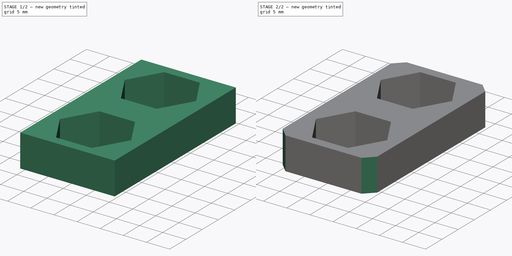
[diagram: build sequence overview — one tinted view per stage of 2, left to right]
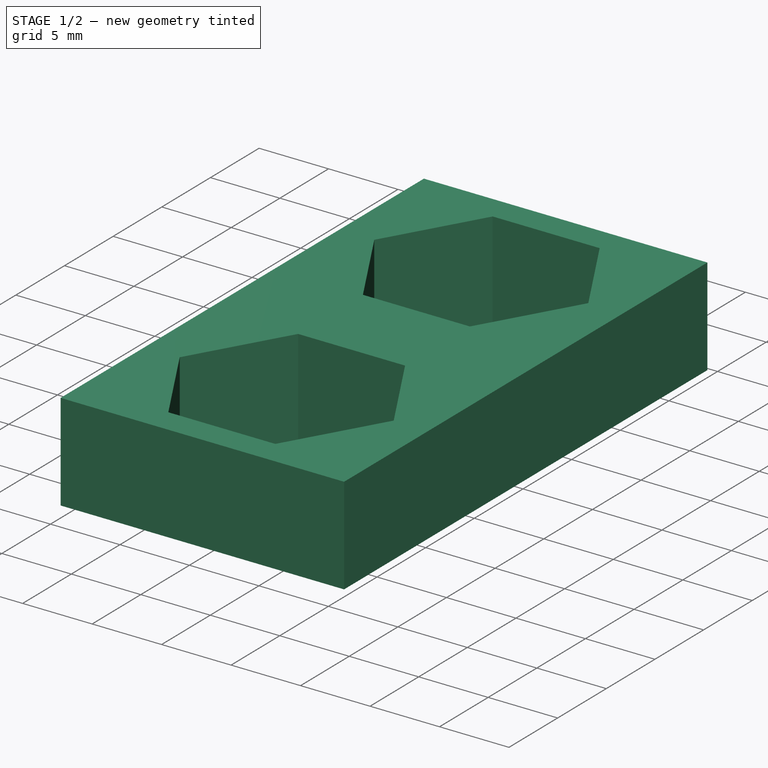
[diagram: stage 1 of 2 — iso view after this stage's code; geometry added in this stage tinted green]
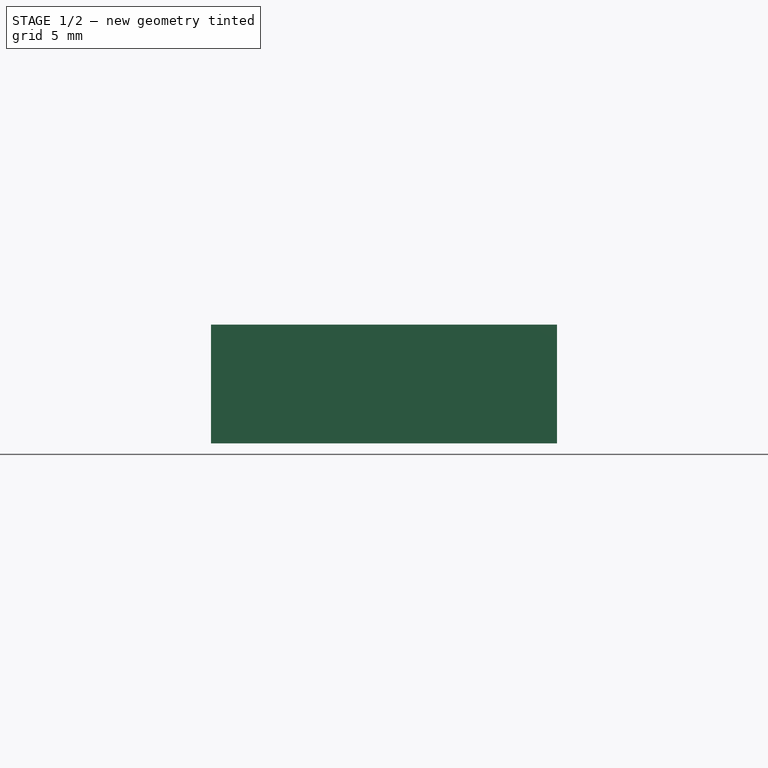
[diagram: stage 1 of 2 — front view after this stage's code; geometry added in this stage tinted green]
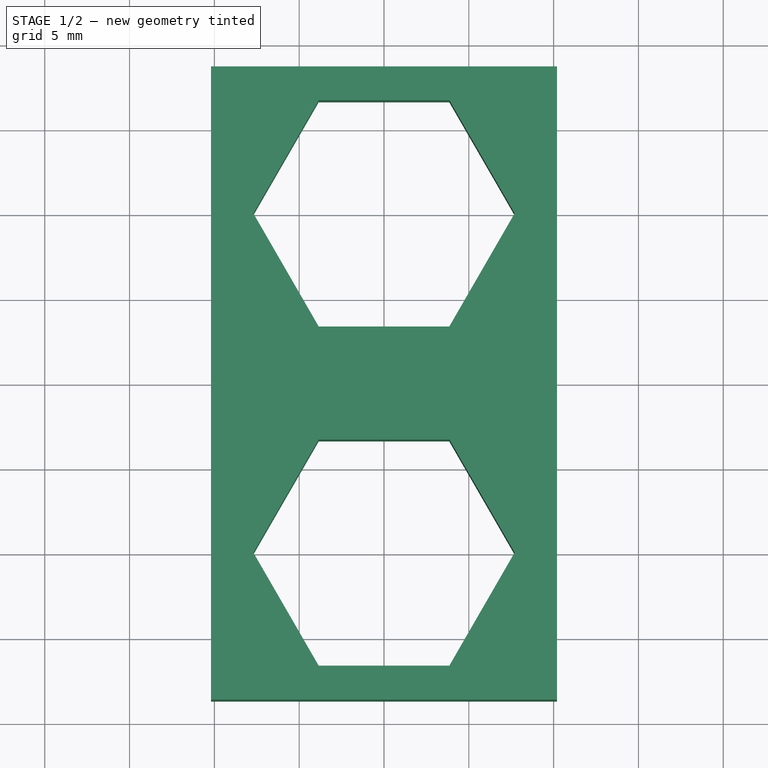
[diagram: stage 1 of 2 — top view after this stage's code; geometry added in this stage tinted green]
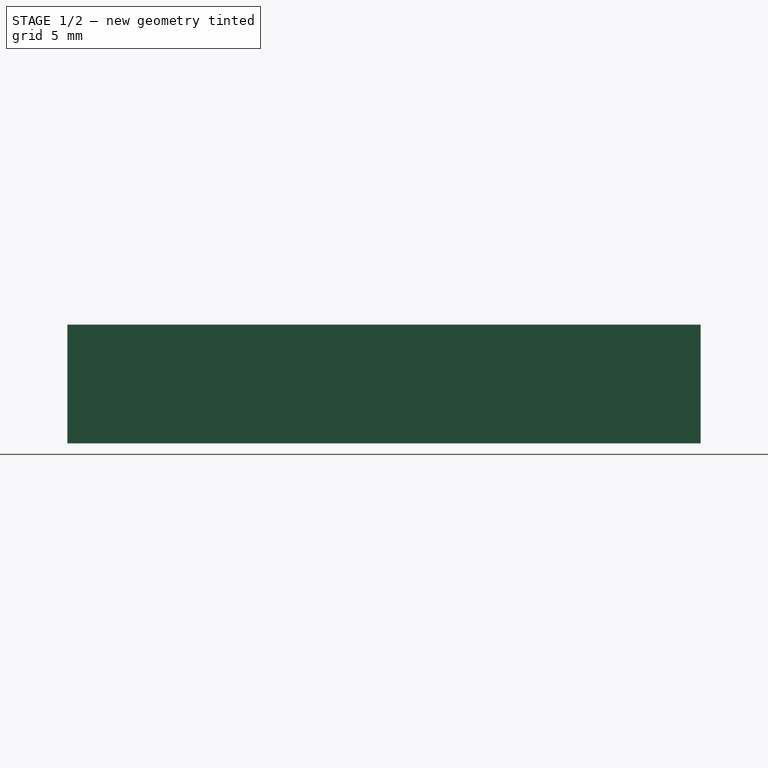
[diagram: stage 1 of 2 — right view after this stage's code; geometry added in this stage tinted green]
FCSTD DOCUMENT  (FreeCAD 0.15R4671 (Git))
Label: Y_axis_corner_nut_locker
License: CreativeCommons Attribution-ShareAlike
LicenseURL: http://creativecommons.org/licenses/by-sa/4.0/
objects: Sketcher::SketchObject×1, PartDesign::Pad×1, PartDesign::Chamfer×1
note: 4 computed .brp shape members not serialized (recipe doc carries the construction recipe); baked Part::Feature solids carry a one-line shape summary decoded from their .brp

FEATURE [Sketcher::SketchObject] Sketch
  sketch-geometry (18):
    g0: LineSegment StartX=3.85 StartY=16.6684 StartZ=0 EndX=-3.85 EndY=16.6684 EndZ=0
    g1: LineSegment StartX=-3.85 StartY=16.6684 StartZ=0 EndX=-7.7 EndY=10 EndZ=0
    g2: LineSegment StartX=-7.7 StartY=10 StartZ=0 EndX=-3.85 EndY=3.3316 EndZ=0
    g3: LineSegment StartX=-3.85 StartY=3.3316 StartZ=0 EndX=3.85 EndY=3.3316 EndZ=0
    g4: LineSegment StartX=3.85 StartY=3.3316 StartZ=0 EndX=7.7 EndY=10 EndZ=0
    g5: LineSegment StartX=7.7 StartY=10 StartZ=0 EndX=3.85 EndY=16.6684 EndZ=0
    g6: Circle [constr] CenterX=0 CenterY=10 CenterZ=0 NormalX=0 NormalY=0 NormalZ=1 Radius=7.7
    g7: LineSegment StartX=3.85 StartY=-3.3316 StartZ=0 EndX=-3.85 EndY=-3.3316 EndZ=0
    g8: LineSegment StartX=-3.85 StartY=-3.3316 StartZ=0 EndX=-7.7 EndY=-10 EndZ=0
    g9: LineSegment StartX=-7.7 StartY=-10 StartZ=0 EndX=-3.85 EndY=-16.6684 EndZ=0
    g10: LineSegment StartX=-3.85 StartY=-16.6684 StartZ=0 EndX=3.85 EndY=-16.6684 EndZ=0
    g11: LineSegment StartX=3.85 StartY=-16.6684 StartZ=0 EndX=7.7 EndY=-10 EndZ=0
    g12: LineSegment StartX=7.7 StartY=-10 StartZ=0 EndX=3.85 EndY=-3.3316 EndZ=0
    g13: Circle [constr] CenterX=0 CenterY=-10 CenterZ=0 NormalX=0 NormalY=0 NormalZ=1 Radius=7.7
    g14: LineSegment StartX=-10.2 StartY=18.6684 StartZ=0 EndX=10.2 EndY=18.6684 EndZ=0
    g15: LineSegment StartX=10.2 StartY=18.6684 StartZ=0 EndX=10.2 EndY=-18.6684 EndZ=0
    g16: LineSegment StartX=10.2 StartY=-18.6684 StartZ=0 EndX=-10.2 EndY=-18.6684 EndZ=0
    g17: LineSegment StartX=-10.2 StartY=-18.6684 StartZ=0 EndX=-10.2 EndY=18.6684 EndZ=0
  constraints (46):
    c: Coincident(g0,g1)
    c: Coincident(g1,g2)
    c: Coincident(g2,g3)
    c: Coincident(g3,g4)
    c: Coincident(g4,g5)
    c: Coincident(g5,g0)
    c: Equal(g0, g1-g5) x5
    c: PointOnObject(g0,g6)
    c: PointOnObject(g1,g6)
    c: PointOnObject(g2,g6)
    c: PointOnObject(g3,g6)
    c: PointOnObject(g4,g6)
    c: PointOnObject(g5,g6)
    c: PointOnObject(g3,g-2)
    c: Coincident(g7,g8)
    c: Coincident(g8,g9)
    c: Coincident(g9,g10)
    c: Coincident(g10,g11)
    c: Coincident(g11,g12)
    c: Coincident(g12,g7)
    c: Equal(g7, g8-g12) x5
    c: PointOnObject(g7,g13)
    c: PointOnObject(g8,g13)
    c: PointOnObject(g9,g13)
    c: PointOnObject(g10,g13)
    c: PointOnObject(g11,g13)
    c: PointOnObject(g12,g13)
    c: PointOnObject(g10,g-2)
    c: Symmetric(g13,g6,g-1)
    c: PointOnObject(g6,g-2)
    c: Equal(g13,g6)
    c: Horizontal(g3)
    c: Horizontal(g7)
    c: DistanceX(g1,g6) = 7.7
    c: Coincident(g14,g15)
    c: Coincident(g15,g16)
    c: Coincident(g16,g17)
    c: Coincident(g17,g14)
    c: Horizontal(g14)
    c: Horizontal(g16)
    c: Vertical(g15)
    c: Vertical(g17)
    c: Symmetric(g14,g15,g-1)
    c: DistanceX(g1,g14) = -2.5
    c: DistanceY(g-1,g6) = 10
    c: DistanceY(g0,g14) = 2
FEATURE [PartDesign::Pad] Pad
  Length = 7
  Length2 = 100
  Sketch = -> Sketch
  Type = 0
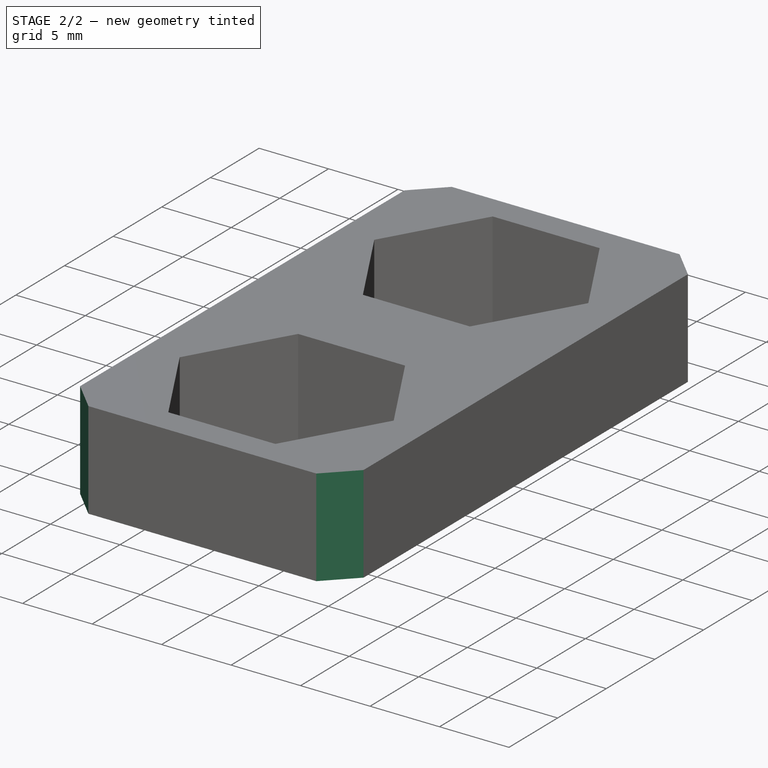
[diagram: stage 2 of 2 — iso view after this stage's code; geometry added in this stage tinted green]
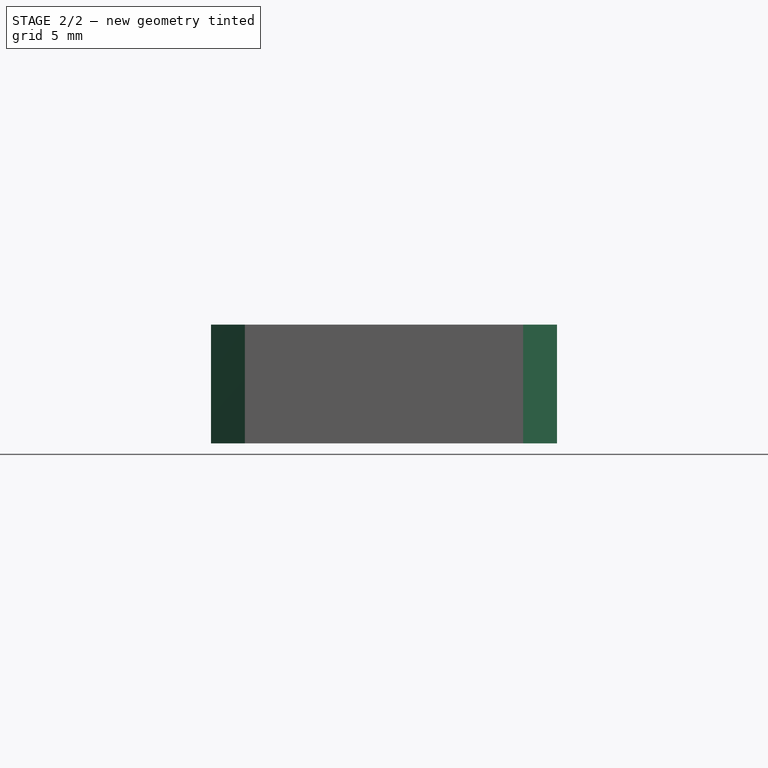
[diagram: stage 2 of 2 — front view after this stage's code; geometry added in this stage tinted green]
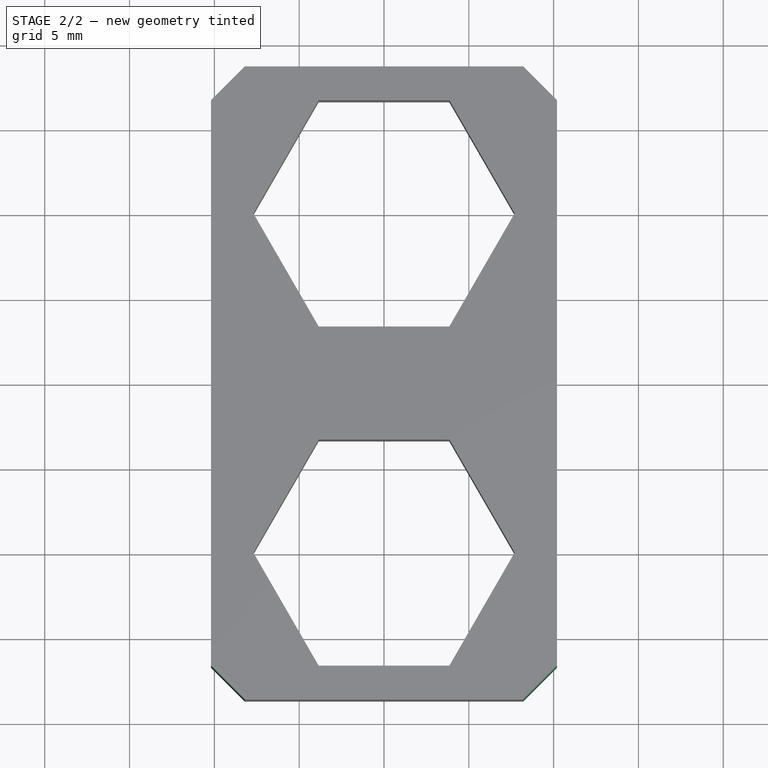
[diagram: stage 2 of 2 — top view after this stage's code; geometry added in this stage tinted green]
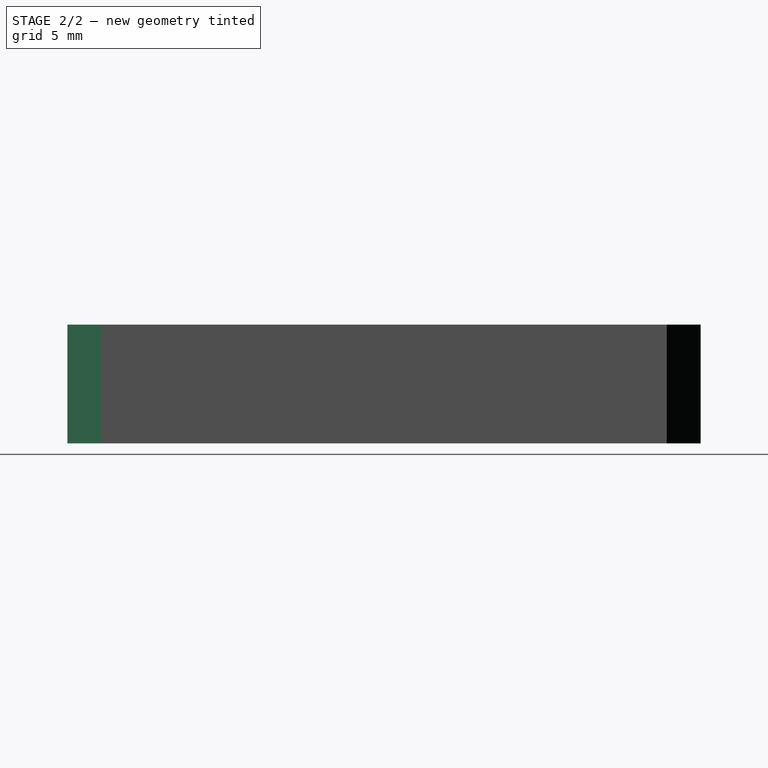
[diagram: stage 2 of 2 — right view after this stage's code; geometry added in this stage tinted green]
FEATURE [PartDesign::Chamfer] Chamfer
  Base = -> Pad [Edge2,Edge1,Edge5,Edge8]
  Size = 2
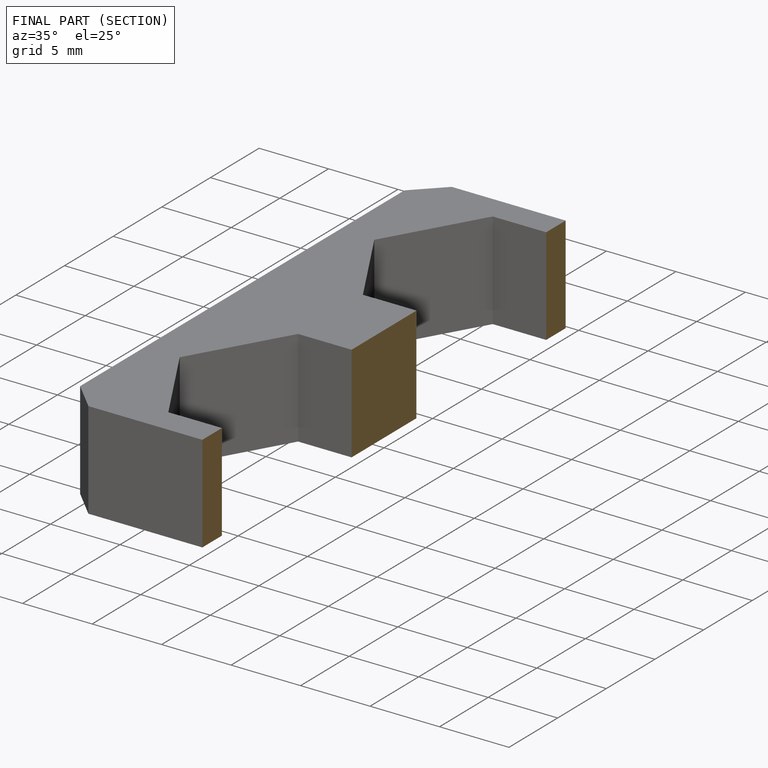
[diagram: finished part — half-section view (interior)]
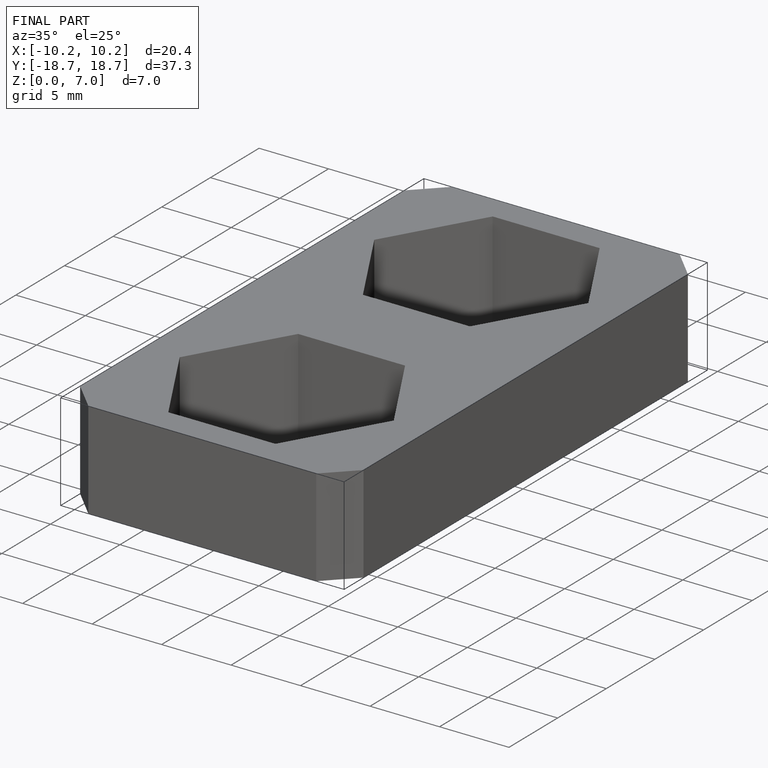
[diagram: finished part — iso view with bounding-box wireframe]
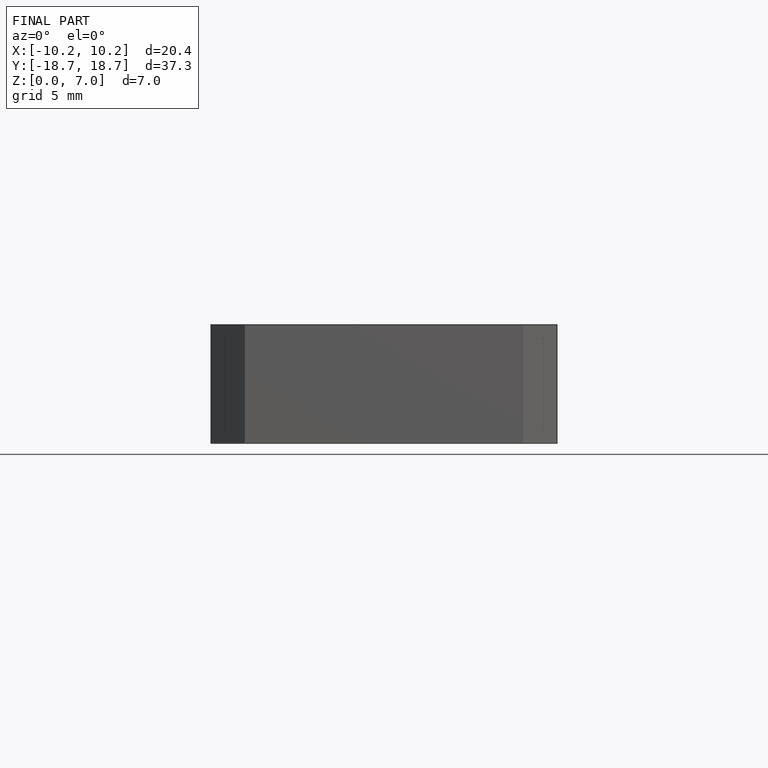
[diagram: finished part — front view with bounding-box wireframe]
